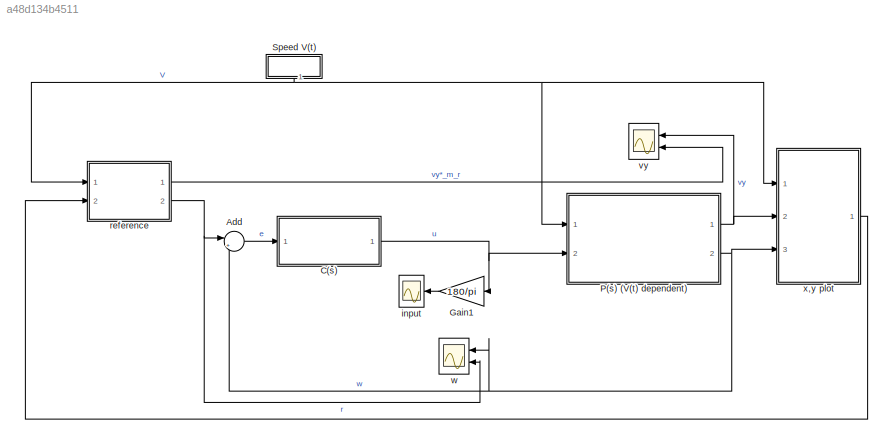
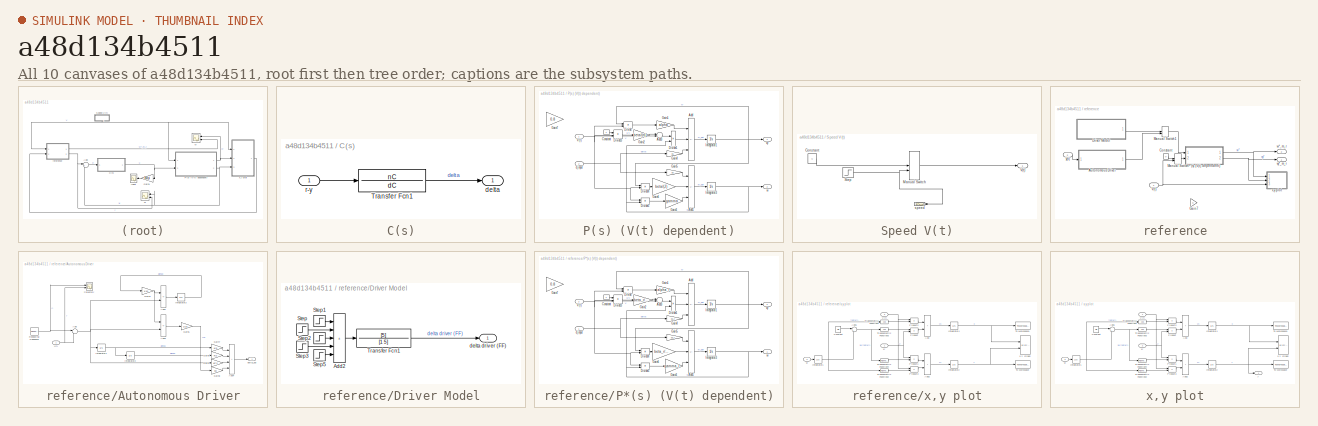
[diagram: thumbnail index - all 10 canvases of the model, root first then tree order]
MODEL slx_a48d134b4511
KIND model
CONFIG AbsTol = auto
CONFIG EnableMultiTasking = off
CONFIG FixedStep = step_size
CONFIG MaxStep = auto
CONFIG MinStep = auto
CONFIG RelTol = 1e-3
CONFIG SampleTimeConstraint = Unconstrained
CONFIG SolverName = FixedStepAuto
CONFIG StartTime = 0.0
CONFIG StopTime = time
BLOCK [Sum] Add
  Inputs = |+-
  Ports = [2, 1]
BLOCK [SubSystem] C(s)
  Ports = [1, 1]
  RequestExecContextInheritance = off
BLOCK [TransferFcn] C(s)/Transfer Fcn1
  Denominator = dC
  Numerator = nC
BLOCK [Outport] C(s)/delta
  VectorParamsAs1DForOutWhenUnconnected = off
BLOCK [Inport] C(s)/r-y
BLOCK [Gain] Gain1
  Gain = 180/pi
  NameLocation = top
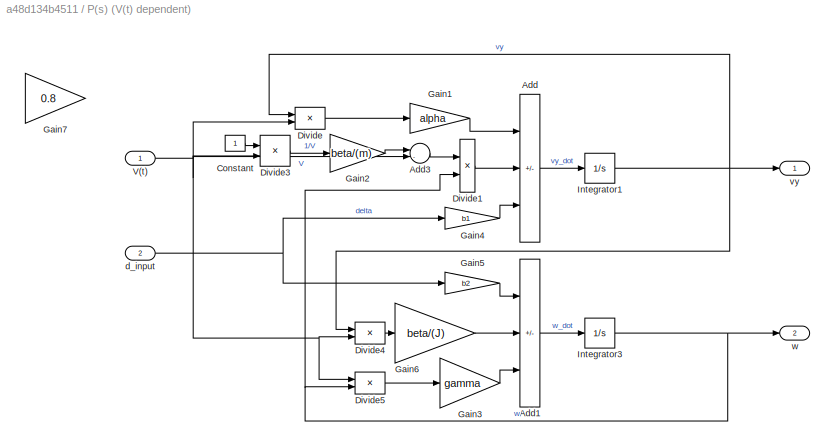
BLOCK [SubSystem] P(s) (V(t) dependent)
  Ports = [2, 2]
  RequestExecContextInheritance = off
BLOCK [Sum] P(s) (V(t) dependent)/Add
  IconShape = rectangular
  Inputs = --+
  Ports = [3, 1]
BLOCK [Sum] P(s) (V(t) dependent)/Add1
  IconShape = rectangular
  Inputs = ++-
  Ports = [3, 1]
BLOCK [Sum] P(s) (V(t) dependent)/Add3
  Inputs = |-+
  Ports = [2, 1]
BLOCK [Constant] P(s) (V(t) dependent)/Constant
BLOCK [Product] P(s) (V(t) dependent)/Divide
  Inputs = */
  Ports = [2, 1]
BLOCK [Product] P(s) (V(t) dependent)/Divide1
  Inputs = **
  Ports = [2, 1]
BLOCK [Product] P(s) (V(t) dependent)/Divide3
  Inputs = */
  Ports = [2, 1]
BLOCK [Product] P(s) (V(t) dependent)/Divide4
  Inputs = */
  Ports = [2, 1]
BLOCK [Product] P(s) (V(t) dependent)/Divide5
  Inputs = /*
  Ports = [2, 1]
BLOCK [Gain] P(s) (V(t) dependent)/Gain1
  Gain = alpha
BLOCK [Gain] P(s) (V(t) dependent)/Gain2
  Gain = beta/(m)
BLOCK [Gain] P(s) (V(t) dependent)/Gain3
  Gain = gamma
BLOCK [Gain] P(s) (V(t) dependent)/Gain4
  Gain = b1
BLOCK [Gain] P(s) (V(t) dependent)/Gain5
  Gain = b2
BLOCK [Gain] P(s) (V(t) dependent)/Gain6
  Gain = beta/(J)
BLOCK [Gain] P(s) (V(t) dependent)/Gain7
  Commented = on
  Gain = 0.8
BLOCK [Integrator] P(s) (V(t) dependent)/Integrator1
  InitialCondition = vy_0
  Ports = [1, 1]
BLOCK [Integrator] P(s) (V(t) dependent)/Integrator3
  Ports = [1, 1]
BLOCK [Inport] P(s) (V(t) dependent)/V(t)
BLOCK [Inport] P(s) (V(t) dependent)/d_input
  Port = 2
BLOCK [Outport] P(s) (V(t) dependent)/vy
  VectorParamsAs1DForOutWhenUnconnected = off
BLOCK [Outport] P(s) (V(t) dependent)/w
  Port = 2
  VectorParamsAs1DForOutWhenUnconnected = off
BLOCK [SubSystem] Speed V(t)
  NameLocation = left
  Ports = [0, 1]
  RequestExecContextInheritance = off
BLOCK [Constant] Speed V(t)/Constant
  Value = V
BLOCK [ManualSwitch] Speed V(t)/Manual Switch
BLOCK [Step] Speed V(t)/Step
  After = V*0.85
  Before = V
  SampleTime = 0
  Time = 7.5
BLOCK [Outport] Speed V(t)/V(t)
  VectorParamsAs1DForOutWhenUnconnected = off
BLOCK [Scope] Speed V(t)/speed
  Commented = on
  Floating = off
  NameLocation = top
  NumInputPorts = 1
  Ports = [1]
  ScopeSpecificationString = Simulink.scopes.TimeScopeBlockCfg('CurrentConfiguration', extmgr.ConfigurationSet(extmgr.Configuration('Core','General UI',true),extmgr.Configuration('Core','Source UI',true),extmgr.Configuration('Sources','WiredSimulink',true,'DataLoggingVariableName','ScopeData3'),extmgr.Configuration('Visuals','Time Domain',true,'SerializedDisplays',{struct('MinYLimReal','-4.58333','MaxYLimReal','41.25','YLabel...<+1527ch>
BLOCK [Scope] input
  Floating = off
  NameLocation = top
  NumInputPorts = 1
  Ports = [1]
  ScopeSpecificationString = Simulink.scopes.TimeScopeBlockCfg('CurrentConfiguration', extmgr.ConfigurationSet(extmgr.Configuration('Core','General UI',true),extmgr.Configuration('Core','Source UI',true),extmgr.Configuration('Sources','WiredSimulink',true,'DataLoggingVariableName','ScopeData1'),extmgr.Configuration('Visuals','Time Domain',true,'SerializedDisplays',{struct('MinYLimReal','-30.42962','MaxYLimReal','30.8207','YLa...<+1658ch>
BLOCK [SubSystem] reference
  Ports = [2, 2]
  RequestExecContextInheritance = off
BLOCK [SubSystem] reference/Autonomous Driver
  Ports = [1, 1]
  RequestExecContextInheritance = off
BLOCK [Sum] reference/Autonomous Driver/Add
  Inputs = |-+
  Ports = [2, 1]
BLOCK [Sum] reference/Autonomous Driver/Add1
  IconShape = rectangular
  Inputs = -+
  Ports = [2, 1]
BLOCK [Sum] reference/Autonomous Driver/Add3
  IconShape = rectangular
  Inputs = -+
  Ports = [2, 1]
BLOCK [Sum] reference/Autonomous Driver/Add4
  IconShape = rectangular
  Inputs = ++++
  Ports = [4, 1]
BLOCK [Gain] reference/Autonomous Driver/Gain3
  Gain = 1/10
  NameLocation = top
BLOCK [Gain] reference/Autonomous Driver/Gain4
  Gain = kP2
  NameLocation = top
BLOCK [Gain] reference/Autonomous Driver/Gain5
  Gain = 1/10
  NameLocation = top
BLOCK [Gain] reference/Autonomous Driver/Gain6
  Gain = kI2
  NameLocation = top
BLOCK [Gain] reference/Autonomous Driver/Gain7
  Gain = kI3
  NameLocation = top
BLOCK [Gain] reference/Autonomous Driver/Gain8
  Gain = kd
  NameLocation = top
BLOCK [Integrator] reference/Autonomous Driver/Integrator1
  Ports = [1, 1]
BLOCK [Integrator] reference/Autonomous Driver/Integrator2
  Ports = [1, 1]
BLOCK [Integrator] reference/Autonomous Driver/Integrator3
  Ports = [1, 1]
BLOCK [Reference] reference/Autonomous Driver/Repeating Sequence  REF=simulink/Sources/Repeating
Sequence
  Ports = [0, 1]
  SourceBlock = simulink/Sources/Repeating\nSequence
  SourceProductBaseCode = SL
  SourceType = Repeating table
BLOCK [Outport] reference/Autonomous Driver/delta_aut
  VectorParamsAs1DForOutWhenUnconnected = off
BLOCK [Scope] reference/Autonomous Driver/trajectory
  Floating = off
  NameLocation = top
  NumInputPorts = 2
  Ports = [2]
  ScopeSpecificationString = Simulink.scopes.TimeScopeBlockCfg('CurrentConfiguration', extmgr.ConfigurationSet(extmgr.Configuration('Core','General UI',true),extmgr.Configuration('Core','Source UI',true),extmgr.Configuration('Sources','WiredSimulink',true,'DataLoggingVariableName','ScopeData2'),extmgr.Configuration('Visuals','Time Domain',true,'SerializedDisplays',{struct('MinYLimReal','-11.23304','MaxYLimReal','1.27752','YLa...<+1701ch>
BLOCK [Inport] reference/Autonomous Driver/y(t)
BLOCK [Constant] reference/Constant
  Value = V
BLOCK [SubSystem] reference/Driver Model
  Ports = [0, 1]
  RequestExecContextInheritance = off
BLOCK [Sum] reference/Driver Model/Add2
  IconShape = rectangular
  Inputs = +++++
  Ports = [5, 1]
BLOCK [Step] reference/Driver Model/Step
  After = V/(r)
  SampleTime = 0
  Time = (100+0.025*(2*pi*r))/V
BLOCK [Step] reference/Driver Model/Step1
  After = -V/(r)
  SampleTime = 0
  Time = 100/V
BLOCK [Step] reference/Driver Model/Step2
  After = V/(r)
  SampleTime = 0
  Time = (100+0.025*(2*pi*r))/V
BLOCK [Step] reference/Driver Model/Step3
  After = -2*V/(r)
  SampleTime = 0
  Time = (100+0.075*(2*pi*r))/V
BLOCK [Step] reference/Driver Model/Step5
  After = V/(r)
  SampleTime = 0
  Time = (100+0.1*(2*pi*r))/V
BLOCK [TransferFcn] reference/Driver Model/Transfer Fcn1
  Denominator = [1 5]
  Numerator = [5]
BLOCK [Outport] reference/Driver Model/delta driver (FF)
  VectorParamsAs1DForOutWhenUnconnected = off
BLOCK [Gain] reference/Gain7
  Commented = on
BLOCK [ManualSwitch] reference/Manual Switch
BLOCK [ManualSwitch] reference/Manual Switch1
  CurrentSetting = 0
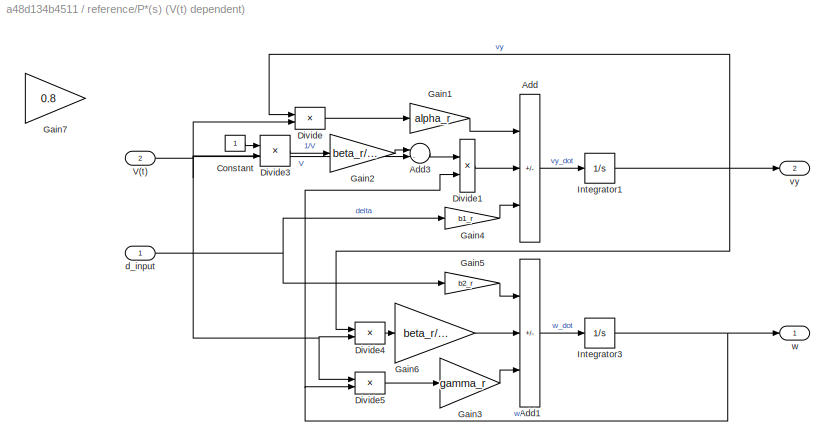
BLOCK [SubSystem] reference/P*(s) (V(t) dependent)
  Ports = [2, 2]
  RequestExecContextInheritance = off
BLOCK [Sum] reference/P*(s) (V(t) dependent)/Add
  IconShape = rectangular
  Inputs = --+
  Ports = [3, 1]
BLOCK [Sum] reference/P*(s) (V(t) dependent)/Add1
  IconShape = rectangular
  Inputs = ++-
  Ports = [3, 1]
BLOCK [Sum] reference/P*(s) (V(t) dependent)/Add3
  Inputs = |-+
  Ports = [2, 1]
BLOCK [Constant] reference/P*(s) (V(t) dependent)/Constant
BLOCK [Product] reference/P*(s) (V(t) dependent)/Divide
  Inputs = */
  Ports = [2, 1]
BLOCK [Product] reference/P*(s) (V(t) dependent)/Divide1
  Inputs = **
  Ports = [2, 1]
BLOCK [Product] reference/P*(s) (V(t) dependent)/Divide3
  Inputs = */
  Ports = [2, 1]
BLOCK [Product] reference/P*(s) (V(t) dependent)/Divide4
  Inputs = */
  Ports = [2, 1]
BLOCK [Product] reference/P*(s) (V(t) dependent)/Divide5
  Inputs = /*
  Ports = [2, 1]
BLOCK [Gain] reference/P*(s) (V(t) dependent)/Gain1
  Gain = alpha_r
BLOCK [Gain] reference/P*(s) (V(t) dependent)/Gain2
  Gain = beta_r/(m)
BLOCK [Gain] reference/P*(s) (V(t) dependent)/Gain3
  Gain = gamma_r
BLOCK [Gain] reference/P*(s) (V(t) dependent)/Gain4
  Gain = b1_r
BLOCK [Gain] reference/P*(s) (V(t) dependent)/Gain5
  Gain = b2_r
BLOCK [Gain] reference/P*(s) (V(t) dependent)/Gain6
  Gain = beta_r/(J)
BLOCK [Gain] reference/P*(s) (V(t) dependent)/Gain7
  Commented = on
  Gain = 0.8
BLOCK [Integrator] reference/P*(s) (V(t) dependent)/Integrator1
  InitialCondition = vy_r0
  Ports = [1, 1]
BLOCK [Integrator] reference/P*(s) (V(t) dependent)/Integrator3
  Ports = [1, 1]
BLOCK [Inport] reference/P*(s) (V(t) dependent)/V(t)
  Port = 2
BLOCK [Inport] reference/P*(s) (V(t) dependent)/d_input
BLOCK [Outport] reference/P*(s) (V(t) dependent)/vy
  Port = 2
  VectorParamsAs1DForOutWhenUnconnected = off
BLOCK [Outport] reference/P*(s) (V(t) dependent)/w
  VectorParamsAs1DForOutWhenUnconnected = off
BLOCK [Inport] reference/V(t)
BLOCK [Outport] reference/vy*_m_r
  VectorParamsAs1DForOutWhenUnconnected = off
BLOCK [Outport] reference/w*_m_r
  NameLocation = top
  Port = 2
  VectorParamsAs1DForOutWhenUnconnected = off
BLOCK [SubSystem] reference/x,y plot
  Ports = [3]
  RequestExecContextInheritance = off
BLOCK [Sum] reference/x,y plot/Add
  IconShape = rectangular
  Ports = [2, 1]
BLOCK [Sum] reference/x,y plot/Add1
  Inputs = |+-
  Ports = [2, 1]
BLOCK [Sum] reference/x,y plot/Add2
  IconShape = rectangular
  Ports = [2, 1]
BLOCK [Constant] reference/x,y plot/Constant
  Value = pi/2
BLOCK [Integrator] reference/x,y plot/Integrator1
  Ports = [1, 1]
BLOCK [Integrator] reference/x,y plot/Integrator2
  Ports = [1, 1]
BLOCK [Integrator] reference/x,y plot/Integrator4
  Ports = [1, 1]
BLOCK [Product] reference/x,y plot/Product
  Ports = [2, 1]
BLOCK [Product] reference/x,y plot/Product1
  Ports = [2, 1]
BLOCK [Product] reference/x,y plot/Product2
  Ports = [2, 1]
BLOCK [Product] reference/x,y plot/Product3
  Ports = [2, 1]
BLOCK [ToWorkspace] reference/x,y plot/To Workspace
  FixptAsFi = on
  MaxDataPoints = inf
  Ports = [1]
  SampleTime = -1
  Save2DSignal = 2-D array (concatenate along first dimension)
  VariableName = yr_position
BLOCK [ToWorkspace] reference/x,y plot/To Workspace1
  FixptAsFi = on
  MaxDataPoints = inf
  Ports = [1]
  SampleTime = -1
  Save2DSignal = 2-D array (concatenate along first dimension)
  VariableName = xr_position
BLOCK [Trigonometry] reference/x,y plot/Trigonometric Function1
  Operator = cos
  Ports = [1, 1]
BLOCK [Trigonometry] reference/x,y plot/Trigonometric Function2
  Ports = [1, 1]
BLOCK [Trigonometry] reference/x,y plot/Trigonometric Function3
  Operator = cos
  Ports = [1, 1]
BLOCK [Trigonometry] reference/x,y plot/Trigonometric Function4
  Ports = [1, 1]
BLOCK [Inport] reference/x,y plot/V(t)
  NameLocation = top
  Port = 3
BLOCK [Reference] reference/x,y plot/XY Graph  REF=simulink/Sinks/XY Graph
  Commented = on
  Ports = [2]
  SourceBlock = simulink/Sinks/XY Graph
  SourceProductBaseCode = SL
  SourceType = XY scope.
BLOCK [Inport] reference/x,y plot/vy
BLOCK [Inport] reference/x,y plot/w
  Port = 2
BLOCK [Inport] reference/y(t)
  NameLocation = top
  Port = 2
BLOCK [Scope] vy
  Floating = off
  NameLocation = top
  NumInputPorts = 2
  Ports = [2]
  ScopeSpecificationString = Simulink.scopes.TimeScopeBlockCfg('CurrentConfiguration', extmgr.ConfigurationSet(extmgr.Configuration('Core','General UI',true),extmgr.Configuration('Core','Source UI',true),extmgr.Configuration('Sources','WiredSimulink',true,'DataLoggingVariableName','ScopeData1'),extmgr.Configuration('Visuals','Time Domain',true,'SerializedDisplays',{struct('MinYLimReal','-2.23988','MaxYLimReal','2.08707','YLab...<+1666ch>
BLOCK [Scope] w
  Floating = off
  NumInputPorts = 2
  Ports = [2]
  ScopeSpecificationString = Simulink.scopes.TimeScopeBlockCfg('CurrentConfiguration', extmgr.ConfigurationSet(extmgr.Configuration('Core','General UI',true),extmgr.Configuration('Core','Source UI',true),extmgr.Configuration('Sources','WiredSimulink',true,'DataLoggingVariableName','ScopeData1'),extmgr.Configuration('Visuals','Time Domain',true,'SerializedDisplays',{struct('MinYLimReal','-0.90056','MaxYLimReal','0.91099','YLab...<+1655ch>
BLOCK [SubSystem] x,y plot
  Ports = [3, 1]
  RequestExecContextInheritance = off
BLOCK [Sum] x,y plot/Add
  IconShape = rectangular
  Ports = [2, 1]
BLOCK [Sum] x,y plot/Add1
  Inputs = |+-
  Ports = [2, 1]
BLOCK [Sum] x,y plot/Add2
  IconShape = rectangular
  Ports = [2, 1]
BLOCK [Constant] x,y plot/Constant
  Value = pi/2
BLOCK [Integrator] x,y plot/Integrator1
  Ports = [1, 1]
BLOCK [Integrator] x,y plot/Integrator2
  Ports = [1, 1]
BLOCK [Integrator] x,y plot/Integrator4
  Ports = [1, 1]
BLOCK [Product] x,y plot/Product
  Ports = [2, 1]
BLOCK [Product] x,y plot/Product1
  Ports = [2, 1]
BLOCK [Product] x,y plot/Product2
  Ports = [2, 1]
BLOCK [Product] x,y plot/Product3
  Ports = [2, 1]
BLOCK [ToWorkspace] x,y plot/To Workspace
  FixptAsFi = on
  MaxDataPoints = inf
  Ports = [1]
  SampleTime = -1
  Save2DSignal = 2-D array (concatenate along first dimension)
  VariableName = y_position
BLOCK [ToWorkspace] x,y plot/To Workspace1
  FixptAsFi = on
  MaxDataPoints = inf
  Ports = [1]
  SampleTime = -1
  Save2DSignal = 2-D array (concatenate along first dimension)
  VariableName = x_position
BLOCK [Trigonometry] x,y plot/Trigonometric Function1
  Operator = cos
  Ports = [1, 1]
BLOCK [Trigonometry] x,y plot/Trigonometric Function2
  Ports = [1, 1]
BLOCK [Trigonometry] x,y plot/Trigonometric Function3
  Operator = cos
  Ports = [1, 1]
BLOCK [Trigonometry] x,y plot/Trigonometric Function4
  Ports = [1, 1]
BLOCK [Inport] x,y plot/V(t)
  NameLocation = top
BLOCK [Reference] x,y plot/XY Graph  REF=simulink/Sinks/XY Graph
  Commented = on
  Ports = [2]
  SourceBlock = simulink/Sinks/XY Graph
  SourceProductBaseCode = SL
  SourceType = XY scope.
BLOCK [Inport] x,y plot/vy
  Port = 2
BLOCK [Inport] x,y plot/w
  Port = 3
BLOCK [Outport] x,y plot/y
  VectorParamsAs1DForOutWhenUnconnected = off
LINE Add:1 -> C(s):1
LINE C(s)/Transfer Fcn1:1 -> C(s)/delta:1
LINE C(s)/r-y:1 -> C(s)/Transfer Fcn1:1
NET C(s):1 -> Gain1:1, P(s) (V(t) dependent):2
LINE Gain1:1 -> input:1
LINE P(s) (V(t) dependent)/Add1:1 -> P(s) (V(t) dependent)/Integrator3:1
LINE P(s) (V(t) dependent)/Add3:1 -> P(s) (V(t) dependent)/Divide1:1
LINE P(s) (V(t) dependent)/Add:1 -> P(s) (V(t) dependent)/Integrator1:1
LINE P(s) (V(t) dependent)/Constant:1 -> P(s) (V(t) dependent)/Divide3:1
LINE P(s) (V(t) dependent)/Divide1:1 -> P(s) (V(t) dependent)/Add:2
LINE P(s) (V(t) dependent)/Divide3:1 -> P(s) (V(t) dependent)/Gain2:1
LINE P(s) (V(t) dependent)/Divide4:1 -> P(s) (V(t) dependent)/Gain6:1
LINE P(s) (V(t) dependent)/Divide5:1 -> P(s) (V(t) dependent)/Gain3:1
LINE P(s) (V(t) dependent)/Divide:1 -> P(s) (V(t) dependent)/Gain1:1
LINE P(s) (V(t) dependent)/Gain1:1 -> P(s) (V(t) dependent)/Add:1
LINE P(s) (V(t) dependent)/Gain2:1 -> P(s) (V(t) dependent)/Add3:1
LINE P(s) (V(t) dependent)/Gain3:1 -> P(s) (V(t) dependent)/Add1:3
LINE P(s) (V(t) dependent)/Gain4:1 -> P(s) (V(t) dependent)/Add:3
LINE P(s) (V(t) dependent)/Gain5:1 -> P(s) (V(t) dependent)/Add1:1
LINE P(s) (V(t) dependent)/Gain6:1 -> P(s) (V(t) dependent)/Add1:2
NET P(s) (V(t) dependent)/Integrator1:1 -> P(s) (V(t) dependent)/Divide4:1, P(s) (V(t) dependent)/Divide:1, P(s) (V(t) dependent)/vy:1
NET P(s) (V(t) dependent)/Integrator3:1 -> P(s) (V(t) dependent)/Divide1:2, P(s) (V(t) dependent)/Divide5:2, P(s) (V(t) dependent)/w:1
NET P(s) (V(t) dependent)/V(t):1 -> P(s) (V(t) dependent)/Add3:2, P(s) (V(t) dependent)/Divide3:2, P(s) (V(t) dependent)/Divide4:2, P(s) (V(t) dependent)/Divide5:1, P(s) (V(t) dependent)/Divide:2
NET P(s) (V(t) dependent)/d_input:1 -> P(s) (V(t) dependent)/Gain4:1, P(s) (V(t) dependent)/Gain5:1
NET P(s) (V(t) dependent):1 -> vy:1, x,y plot:2
NET P(s) (V(t) dependent):2 -> Add:2, w:1, x,y plot:3
LINE Speed V(t)/Constant:1 -> Speed V(t)/Manual Switch:1
LINE Speed V(t)/Manual Switch:1 -> Speed V(t)/V(t):1
NET Speed V(t)/Step:1 -> Speed V(t)/Manual Switch:2, Speed V(t)/speed:1
NET Speed V(t):1 -> P(s) (V(t) dependent):1, reference:1, x,y plot:1
LINE reference/Autonomous Driver/Add1:1 -> reference/Autonomous Driver/Integrator3:1
LINE reference/Autonomous Driver/Add3:1 -> reference/Autonomous Driver/Gain5:1
LINE reference/Autonomous Driver/Add4:1 -> reference/Autonomous Driver/delta_aut:1
NET reference/Autonomous Driver/Add:1 -> reference/Autonomous Driver/Add1:2, reference/Autonomous Driver/Add3:2, reference/Autonomous Driver/Gain4:1, reference/Autonomous Driver/Integrator1:1
NET reference/Autonomous Driver/Gain3:1 -> reference/Autonomous Driver/Add1:1, reference/Autonomous Driver/Add3:1
LINE reference/Autonomous Driver/Gain4:1 -> reference/Autonomous Driver/Add4:3
LINE reference/Autonomous Driver/Gain5:1 -> reference/Autonomous Driver/Gain8:1
LINE reference/Autonomous Driver/Gain6:1 -> reference/Autonomous Driver/Add4:2
LINE reference/Autonomous Driver/Gain7:1 -> reference/Autonomous Driver/Add4:1
LINE reference/Autonomous Driver/Gain8:1 -> reference/Autonomous Driver/Add4:4
NET reference/Autonomous Driver/Integrator1:1 -> reference/Autonomous Driver/Gain7:1, reference/Autonomous Driver/Integrator2:1
LINE reference/Autonomous Driver/Integrator2:1 -> reference/Autonomous Driver/Gain6:1
LINE reference/Autonomous Driver/Integrator3:1 -> reference/Autonomous Driver/Gain3:1
NET reference/Autonomous Driver/Repeating Sequence:1 -> reference/Autonomous Driver/Add:1, reference/Autonomous Driver/trajectory:1
NET reference/Autonomous Driver/y(t):1 -> reference/Autonomous Driver/Add:2, reference/Autonomous Driver/trajectory:2
LINE reference/Autonomous Driver:1 -> reference/Manual Switch1:2
LINE reference/Constant:1 -> reference/Manual Switch:1
LINE reference/Driver Model/Add2:1 -> reference/Driver Model/Transfer Fcn1:1
LINE reference/Driver Model/Step1:1 -> reference/Driver Model/Add2:1
LINE reference/Driver Model/Step2:1 -> reference/Driver Model/Add2:3
LINE reference/Driver Model/Step3:1 -> reference/Driver Model/Add2:4
LINE reference/Driver Model/Step5:1 -> reference/Driver Model/Add2:5
LINE reference/Driver Model/Step:1 -> reference/Driver Model/Add2:2
LINE reference/Driver Model/Transfer Fcn1:1 -> reference/Driver Model/delta driver (FF):1
LINE reference/Driver Model:1 -> reference/Manual Switch1:1
LINE reference/Manual Switch1:1 -> reference/P*(s) (V(t) dependent):1
LINE reference/Manual Switch:1 -> reference/P*(s) (V(t) dependent):2
LINE reference/P*(s) (V(t) dependent)/Add1:1 -> reference/P*(s) (V(t) dependent)/Integrator3:1
LINE reference/P*(s) (V(t) dependent)/Add3:1 -> reference/P*(s) (V(t) dependent)/Divide1:1
LINE reference/P*(s) (V(t) dependent)/Add:1 -> reference/P*(s) (V(t) dependent)/Integrator1:1
LINE reference/P*(s) (V(t) dependent)/Constant:1 -> reference/P*(s) (V(t) dependent)/Divide3:1
LINE reference/P*(s) (V(t) dependent)/Divide1:1 -> reference/P*(s) (V(t) dependent)/Add:2
LINE reference/P*(s) (V(t) dependent)/Divide3:1 -> reference/P*(s) (V(t) dependent)/Gain2:1
LINE reference/P*(s) (V(t) dependent)/Divide4:1 -> reference/P*(s) (V(t) dependent)/Gain6:1
LINE reference/P*(s) (V(t) dependent)/Divide5:1 -> reference/P*(s) (V(t) dependent)/Gain3:1
LINE reference/P*(s) (V(t) dependent)/Divide:1 -> reference/P*(s) (V(t) dependent)/Gain1:1
LINE reference/P*(s) (V(t) dependent)/Gain1:1 -> reference/P*(s) (V(t) dependent)/Add:1
LINE reference/P*(s) (V(t) dependent)/Gain2:1 -> reference/P*(s) (V(t) dependent)/Add3:1
LINE reference/P*(s) (V(t) dependent)/Gain3:1 -> reference/P*(s) (V(t) dependent)/Add1:3
LINE reference/P*(s) (V(t) dependent)/Gain4:1 -> reference/P*(s) (V(t) dependent)/Add:3
LINE reference/P*(s) (V(t) dependent)/Gain5:1 -> reference/P*(s) (V(t) dependent)/Add1:1
LINE reference/P*(s) (V(t) dependent)/Gain6:1 -> reference/P*(s) (V(t) dependent)/Add1:2
NET reference/P*(s) (V(t) dependent)/Integrator1:1 -> reference/P*(s) (V(t) dependent)/Divide4:1, reference/P*(s) (V(t) dependent)/Divide:1, reference/P*(s) (V(t) dependent)/vy:1
NET reference/P*(s) (V(t) dependent)/Integrator3:1 -> reference/P*(s) (V(t) dependent)/Divide1:2, reference/P*(s) (V(t) dependent)/Divide5:2, reference/P*(s) (V(t) dependent)/w:1
NET reference/P*(s) (V(t) dependent)/V(t):1 -> reference/P*(s) (V(t) dependent)/Add3:2, reference/P*(s) (V(t) dependent)/Divide3:2, reference/P*(s) (V(t) dependent)/Divide4:2, reference/P*(s) (V(t) dependent)/Divide5:1, reference/P*(s) (V(t) dependent)/Divide:2
NET reference/P*(s) (V(t) dependent)/d_input:1 -> reference/P*(s) (V(t) dependent)/Gain4:1, reference/P*(s) (V(t) dependent)/Gain5:1
NET reference/P*(s) (V(t) dependent):1 -> reference/w*_m_r:1, reference/x,y plot:1
NET reference/P*(s) (V(t) dependent):2 -> reference/vy*_m_r:1, reference/x,y plot:2
NET reference/V(t):1 -> reference/Manual Switch:2, reference/x,y plot:3
NET reference/x,y plot/Add1:1 -> reference/x,y plot/Trigonometric Function3:1, reference/x,y plot/Trigonometric Function4:1
LINE reference/x,y plot/Add2:1 -> reference/x,y plot/Integrator2:1
LINE reference/x,y plot/Add:1 -> reference/x,y plot/Integrator4:1
LINE reference/x,y plot/Constant:1 -> reference/x,y plot/Add1:1
NET reference/x,y plot/Integrator1:1 -> reference/x,y plot/Add1:2, reference/x,y plot/Trigonometric Function1:1, reference/x,y plot/Trigonometric Function2:1
NET reference/x,y plot/Integrator2:1 -> reference/x,y plot/To Workspace:1, reference/x,y plot/XY Graph:2
NET reference/x,y plot/Integrator4:1 -> reference/x,y plot/To Workspace1:1, reference/x,y plot/XY Graph:1
LINE reference/x,y plot/Product1:1 -> reference/x,y plot/Add2:1
LINE reference/x,y plot/Product2:1 -> reference/x,y plot/Add:1
LINE reference/x,y plot/Product3:1 -> reference/x,y plot/Add2:2
LINE reference/x,y plot/Product:1 -> reference/x,y plot/Add:2
LINE reference/x,y plot/Trigonometric Function1:1 -> reference/x,y plot/Product2:2
LINE reference/x,y plot/Trigonometric Function2:1 -> reference/x,y plot/Product3:2
LINE reference/x,y plot/Trigonometric Function3:1 -> reference/x,y plot/Product:1
LINE reference/x,y plot/Trigonometric Function4:1 -> reference/x,y plot/Product1:2
NET reference/x,y plot/V(t):1 -> reference/x,y plot/Product2:1, reference/x,y plot/Product3:1
NET reference/x,y plot/vy:1 -> reference/x,y plot/Product1:1, reference/x,y plot/Product:2
LINE reference/x,y plot/w:1 -> reference/x,y plot/Integrator1:1
LINE reference/y(t):1 -> reference/Autonomous Driver:1
LINE reference:1 -> vy:2
NET reference:2 -> Add:1, w:2
NET x,y plot/Add1:1 -> x,y plot/Trigonometric Function3:1, x,y plot/Trigonometric Function4:1
LINE x,y plot/Add2:1 -> x,y plot/Integrator2:1
LINE x,y plot/Add:1 -> x,y plot/Integrator4:1
LINE x,y plot/Constant:1 -> x,y plot/Add1:1
NET x,y plot/Integrator1:1 -> x,y plot/Add1:2, x,y plot/Trigonometric Function1:1, x,y plot/Trigonometric Function2:1
NET x,y plot/Integrator2:1 -> x,y plot/To Workspace:1, x,y plot/XY Graph:2, x,y plot/y:1
NET x,y plot/Integrator4:1 -> x,y plot/To Workspace1:1, x,y plot/XY Graph:1
LINE x,y plot/Product1:1 -> x,y plot/Add2:1
LINE x,y plot/Product2:1 -> x,y plot/Add:1
LINE x,y plot/Product3:1 -> x,y plot/Add2:2
LINE x,y plot/Product:1 -> x,y plot/Add:2
LINE x,y plot/Trigonometric Function1:1 -> x,y plot/Product2:2
LINE x,y plot/Trigonometric Function2:1 -> x,y plot/Product3:2
LINE x,y plot/Trigonometric Function3:1 -> x,y plot/Product:1
LINE x,y plot/Trigonometric Function4:1 -> x,y plot/Product1:2
NET x,y plot/V(t):1 -> x,y plot/Product2:1, x,y plot/Product3:1
NET x,y plot/vy:1 -> x,y plot/Product1:1, x,y plot/Product:2
LINE x,y plot/w:1 -> x,y plot/Integrator1:1
LINE x,y plot:1 -> reference:2
note: NET lines group one-source signal fan-out (src -> all destinations, sorted); 1:1 wires keep LINE
